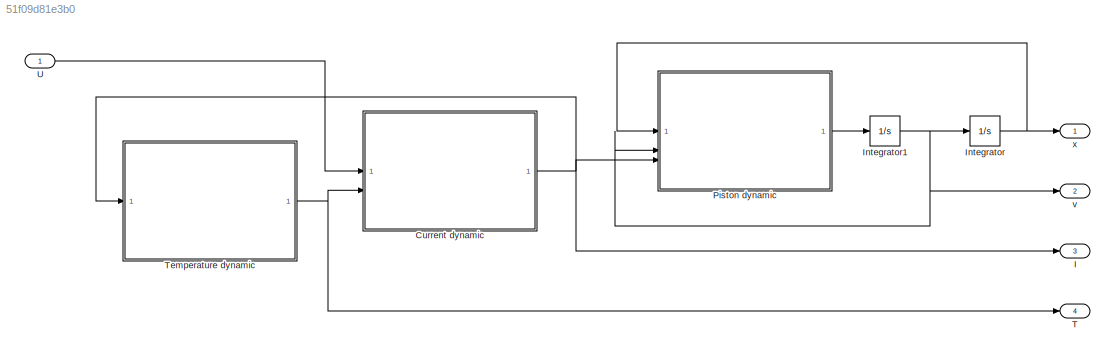
MODEL slx_51f09d81e3b0
KIND model
CONFIG AbsTol = auto
CONFIG EnableMultiTasking = off
CONFIG FixedStep = auto
CONFIG MaxStep = auto
CONFIG MinStep = auto
CONFIG RelTol = 1e-3
CONFIG SampleTimeConstraint = Unconstrained
CONFIG SolverName = VariableStepAuto
CONFIG StartTime = 0.0
CONFIG StopTime = 10.0
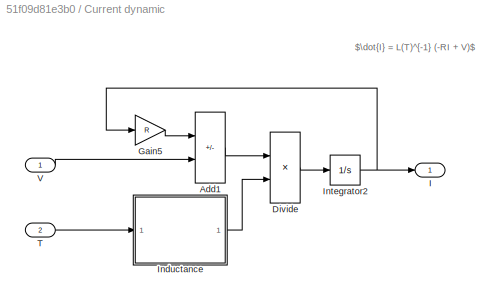
BLOCK [SubSystem] Current dynamic
BLOCK [Sum] Current dynamic/Add1
  IconShape = rectangular
  Inputs = -+
BLOCK [Product] Current dynamic/Divide
  Inputs = */
BLOCK [Gain] Current dynamic/Gain5
  Gain = R
BLOCK [Outport] Current dynamic/I
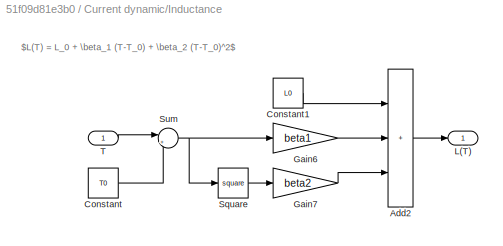
BLOCK [SubSystem] Current dynamic/Inductance
BLOCK [Sum] Current dynamic/Inductance/Add2
  IconShape = rectangular
  Inputs = +++
BLOCK [Constant] Current dynamic/Inductance/Constant
  Commented = on
  Value = T0
BLOCK [Constant] Current dynamic/Inductance/Constant1
  Value = L0
BLOCK [Gain] Current dynamic/Inductance/Gain6
  Gain = beta1
BLOCK [Gain] Current dynamic/Inductance/Gain7
  Gain = beta2
BLOCK [Outport] Current dynamic/Inductance/L(T)
BLOCK [Math] Current dynamic/Inductance/Square
  Operator = square
BLOCK [Sum] Current dynamic/Inductance/Sum
  Inputs = |+-
BLOCK [Inport] Current dynamic/Inductance/T
BLOCK [Integrator] Current dynamic/Integrator2
  InitialCondition = x_eq(3)
BLOCK [Inport] Current dynamic/T
  Port = 2
BLOCK [Inport] Current dynamic/V
BLOCK [Outport] I
  Port = 3
BLOCK [Integrator] Integrator
  InitialCondition = x_eq(1)
BLOCK [Integrator] Integrator1
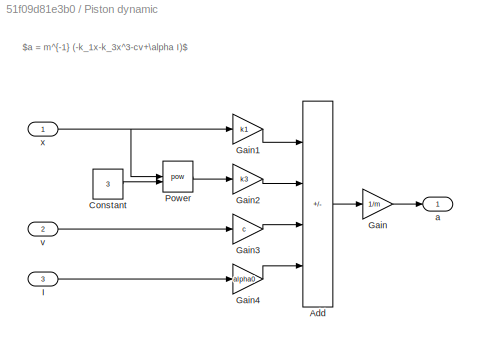
BLOCK [SubSystem] Piston dynamic
BLOCK [Sum] Piston dynamic/Add
  IconShape = rectangular
  Inputs = ---+
BLOCK [Constant] Piston dynamic/Constant
  Value = 3
BLOCK [Gain] Piston dynamic/Gain
  Gain = 1/m
BLOCK [Gain] Piston dynamic/Gain1
  Gain = k1
BLOCK [Gain] Piston dynamic/Gain2
  Gain = k3
BLOCK [Gain] Piston dynamic/Gain3
  Gain = c
BLOCK [Gain] Piston dynamic/Gain4
  Gain = alpha0
BLOCK [Inport] Piston dynamic/I
  Port = 3
BLOCK [Math] Piston dynamic/Power
  Operator = pow
BLOCK [Outport] Piston dynamic/a
BLOCK [Inport] Piston dynamic/v
  Port = 2
BLOCK [Inport] Piston dynamic/x
BLOCK [Outport] T
  Port = 4
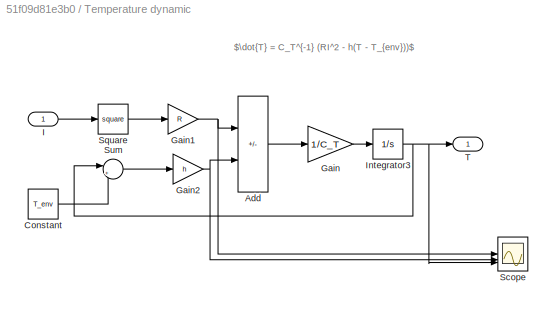
BLOCK [SubSystem] Temperature dynamic
BLOCK [Sum] Temperature dynamic/Add
  IconShape = rectangular
  Inputs = +-
BLOCK [Constant] Temperature dynamic/Constant
  Value = T_env
BLOCK [Gain] Temperature dynamic/Gain
  Gain = 1/C_T
BLOCK [Gain] Temperature dynamic/Gain1
  Gain = R
BLOCK [Gain] Temperature dynamic/Gain2
  Gain = h
BLOCK [Inport] Temperature dynamic/I
BLOCK [Integrator] Temperature dynamic/Integrator3
  InitialCondition = x_eq(4)
BLOCK [Scope] Temperature dynamic/Scope
  Floating = off
  NumInputPorts = 3
  ScopeSpecificationString = Simulink.scopes.TimeScopeBlockCfg('CurrentConfiguration', extmgr.ConfigurationSet(extmgr.Configuration('Core','General UI',true),extmgr.Configuration('Core','Source UI',true),extmgr.Configuration('Sources','WiredSimulink',true),extmgr.Configuration('Visuals','Time Domain',true,'SerializedDisplays',{struct('MinYLimReal','-31.26876','MaxYLimReal','331.41882','YLabelReal','','MinYLimMag','0.00000','M...<+1590ch>
BLOCK [Math] Temperature dynamic/Square
  Operator = square
BLOCK [Sum] Temperature dynamic/Sum
  Inputs = |+-
BLOCK [Outport] Temperature dynamic/T
BLOCK [Inport] U
BLOCK [Outport] v
  Port = 2
BLOCK [Outport] x
ANNOTATION Current dynamic: $\dot{I} = L(T)^{-1} (-RI + V)$
ANNOTATION Current dynamic/Inductance: $L(T) = L_0 + \beta_1 (T-T_0) + \beta_2 (T-T_0)^2$
ANNOTATION Piston dynamic: $a = m^{-1} (-k_1x-k_3x^3-cv+\alpha I)$
ANNOTATION Temperature dynamic: $\dot{T} = C_T^{-1} (RI^2 - h(T - T_{env}))$
LINE Current dynamic/Add1:1 -> Current dynamic/Divide:1
LINE Current dynamic/Divide:1 -> Current dynamic/Integrator2:1
LINE Current dynamic/Gain5:1 -> Current dynamic/Add1:1
LINE Current dynamic/Inductance/Add2:1 -> Current dynamic/Inductance/L(T):1
LINE Current dynamic/Inductance/Constant1:1 -> Current dynamic/Inductance/Add2:1
LINE Current dynamic/Inductance/Constant:1 -> Current dynamic/Inductance/Sum:2
LINE Current dynamic/Inductance/Gain6:1 -> Current dynamic/Inductance/Add2:2
LINE Current dynamic/Inductance/Gain7:1 -> Current dynamic/Inductance/Add2:3
LINE Current dynamic/Inductance/Square:1 -> Current dynamic/Inductance/Gain7:1
NET Current dynamic/Inductance/Sum:1 -> Current dynamic/Inductance/Gain6:1, Current dynamic/Inductance/Square:1
LINE Current dynamic/Inductance/T:1 -> Current dynamic/Inductance/Sum:1
LINE Current dynamic/Inductance:1 -> Current dynamic/Divide:2
NET Current dynamic/Integrator2:1 -> Current dynamic/Gain5:1, Current dynamic/I:1
LINE Current dynamic/T:1 -> Current dynamic/Inductance:1
LINE Current dynamic/V:1 -> Current dynamic/Add1:2
NET Current dynamic:1 -> I:1, Piston dynamic:3, Temperature dynamic:1
NET Integrator1:1 -> Integrator:1, Piston dynamic:2, v:1
NET Integrator:1 -> Piston dynamic:1, x:1
LINE Piston dynamic/Add:1 -> Piston dynamic/Gain:1
LINE Piston dynamic/Constant:1 -> Piston dynamic/Power:2
LINE Piston dynamic/Gain1:1 -> Piston dynamic/Add:1
LINE Piston dynamic/Gain2:1 -> Piston dynamic/Add:2
LINE Piston dynamic/Gain3:1 -> Piston dynamic/Add:3
LINE Piston dynamic/Gain4:1 -> Piston dynamic/Add:4
LINE Piston dynamic/Gain:1 -> Piston dynamic/a:1
LINE Piston dynamic/I:1 -> Piston dynamic/Gain4:1
LINE Piston dynamic/Power:1 -> Piston dynamic/Gain2:1
LINE Piston dynamic/v:1 -> Piston dynamic/Gain3:1
NET Piston dynamic/x:1 -> Piston dynamic/Gain1:1, Piston dynamic/Power:1
LINE Piston dynamic:1 -> Integrator1:1
LINE Temperature dynamic/Add:1 -> Temperature dynamic/Gain:1
LINE Temperature dynamic/Constant:1 -> Temperature dynamic/Sum:2
NET Temperature dynamic/Gain1:1 -> Temperature dynamic/Add:1, Temperature dynamic/Scope:1
NET Temperature dynamic/Gain2:1 -> Temperature dynamic/Add:2, Temperature dynamic/Scope:2
LINE Temperature dynamic/Gain:1 -> Temperature dynamic/Integrator3:1
LINE Temperature dynamic/I:1 -> Temperature dynamic/Square:1
NET Temperature dynamic/Integrator3:1 -> Temperature dynamic/Scope:3, Temperature dynamic/Sum:1, Temperature dynamic/T:1
LINE Temperature dynamic/Square:1 -> Temperature dynamic/Gain1:1
LINE Temperature dynamic/Sum:1 -> Temperature dynamic/Gain2:1
NET Temperature dynamic:1 -> Current dynamic:2, T:1
LINE U:1 -> Current dynamic:1
note: NET lines group one-source signal fan-out (src -> all destinations, sorted); 1:1 wires keep LINE
